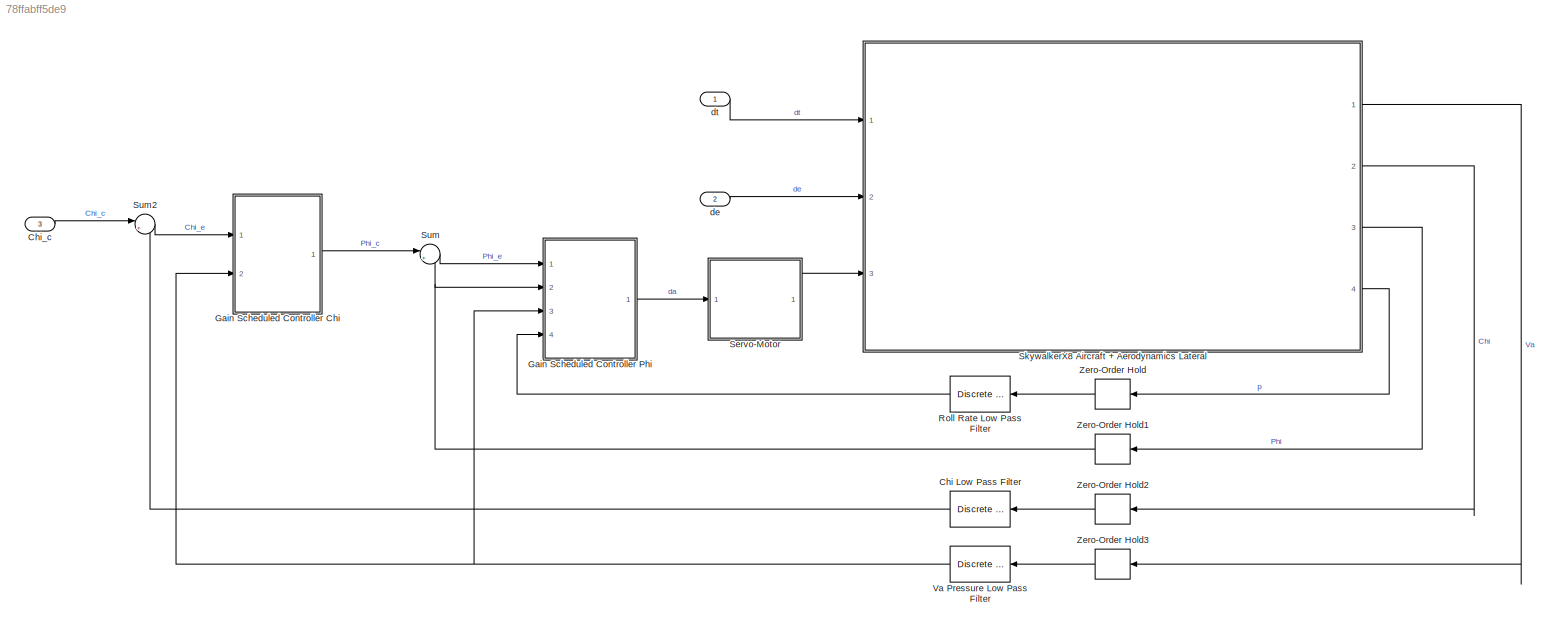
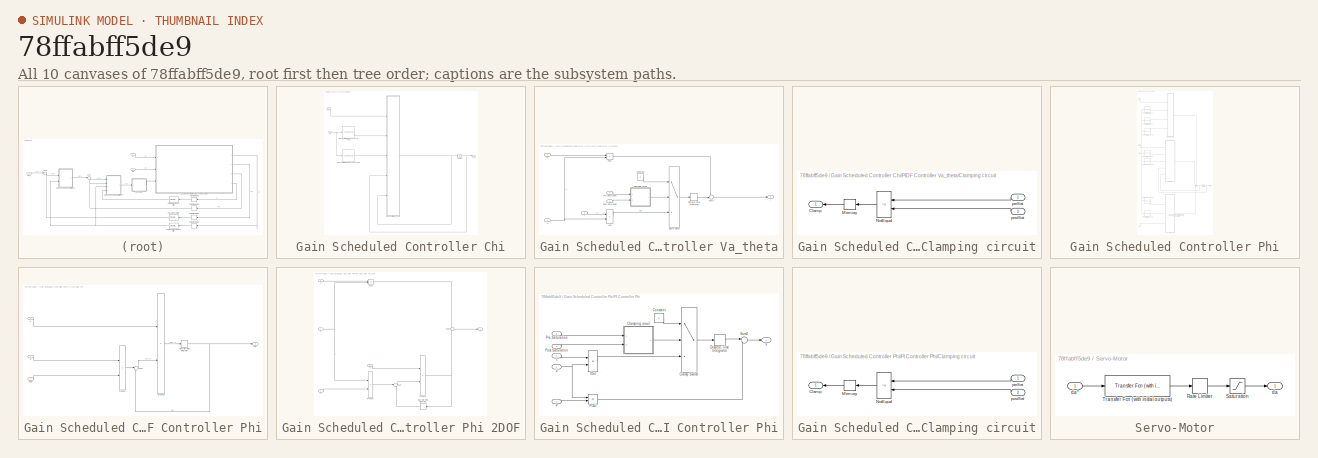
[diagram: thumbnail index - all 10 canvases of the model, root first then tree order]
MODEL slx_78ffabff5de9
KIND model
CONFIG AbsTol = auto
CONFIG EnableMultiTasking = off
CONFIG FixedStep = 0.001
CONFIG MaxStep = auto
CONFIG MinStep = auto
CONFIG RelTol = 1e-3
CONFIG SampleTimeConstraint = Unconstrained
CONFIG Solver = FixedStepAuto
CONFIG SolverName = FixedStepAuto
CONFIG StartTime = 0.0
CONFIG StopTime = inf
BLOCK [Reference] Chi Low Pass Filter  REF=simulink_extras/Additional
Discrete/Discrete
Transfer Fcn
(with initial outputs)
  Ports = [1, 1]
  SourceBlock = simulink_extras/Additional\nDiscrete/Discrete\nTransfer Fcn\n(with initial outputs)
  SourceProductBaseCode = SL
  SourceProductName = Simulink
  SourceType = Discrete Transfer Function with Initial Outputs
BLOCK [Inport] Chi_c
  IconDisplay = Port number
  Port = 3
BLOCK [SubSystem] Gain Scheduled Controller Chi
  Ports = [2, 1]
  RequestExecContextInheritance = off
BLOCK [Inport] Gain Scheduled Controller Chi/Chi_e
  IconDisplay = Port number
BLOCK [Lookup_n-D] Gain Scheduled Controller Chi/PIDF Controller Chi Ki 2D Lookup Table
  BreakpointsForDimension1 = SkywalkerX8.Control.Lateral.SchedulingVariables.VaArray
  BreakpointsForDimension2 = SkywalkerX8.Control.Longitudinal.SchedulingVariables.alphaArray
  InternalRulePriority = Speed
  NumberOfTableDimensions = 1
  Ports = [1, 1]
  RndMeth = Simplest
  Table = SkywalkerX8.Control.Lateral.ChiController.Digital.KiChi
BLOCK [Lookup_n-D] Gain Scheduled Controller Chi/PIDF Controller Chi Kp 2D Lookup Table
  BreakpointsForDimension1 = SkywalkerX8.Control.Lateral.SchedulingVariables.VaArray
  BreakpointsForDimension2 = SkywalkerX8.Control.Longitudinal.SchedulingVariables.alphaArray
  InternalRulePriority = Speed
  NumberOfTableDimensions = 1
  Ports = [1, 1]
  RndMeth = Simplest
  Table = SkywalkerX8.Control.Lateral.ChiController.Digital.KpChi
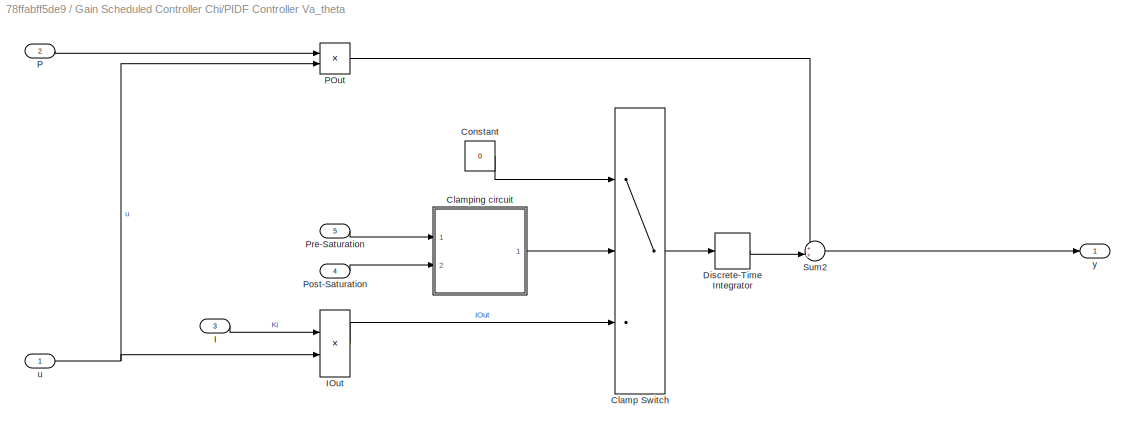
BLOCK [SubSystem] Gain Scheduled Controller Chi/PIDF Controller Va_theta
  Ports = [5, 1]
  RequestExecContextInheritance = off
BLOCK [Switch] Gain Scheduled Controller Chi/PIDF Controller Va_theta/Clamp Switch
  Criteria = u2 ~= 0
  InputSameDT = off
  SaturateOnIntegerOverflow = off
BLOCK [SubSystem] Gain Scheduled Controller Chi/PIDF Controller Va_theta/Clamping circuit
  Ports = [2, 1]
  RequestExecContextInheritance = off
BLOCK [Outport] Gain Scheduled Controller Chi/PIDF Controller Va_theta/Clamping circuit/Clamp
  DisableCoverage = on
  IconDisplay = Port number
BLOCK [Memory] Gain Scheduled Controller Chi/PIDF Controller Va_theta/Clamping circuit/Memory
  DisableCoverage = on
BLOCK [RelationalOperator] Gain Scheduled Controller Chi/PIDF Controller Va_theta/Clamping circuit/NotEqual
  DisableCoverage = on
  Operator = ~=
  Ports = [2, 1]
BLOCK [Inport] Gain Scheduled Controller Chi/PIDF Controller Va_theta/Clamping circuit/postSat
  DisableCoverage = on
  IconDisplay = Port number
  Port = 2
BLOCK [Inport] Gain Scheduled Controller Chi/PIDF Controller Va_theta/Clamping circuit/preSat
  DisableCoverage = on
  IconDisplay = Port number
BLOCK [Constant] Gain Scheduled Controller Chi/PIDF Controller Va_theta/Constant
  Value = 0
BLOCK [DiscreteIntegrator] Gain Scheduled Controller Chi/PIDF Controller Va_theta/Discrete-Time Integrator
  ICPrevOutput = DiscIntNeverNeededParam
  ICPrevScaledInput = DiscIntNeverNeededParam
  InitialCondition = SkywalkerX8.InitialConditions.PhiThetaPsi(1)
  InitialConditionSetting = Auto
  IntegratorMethod = Integration: Trapezoidal
  Ports = [1, 1]
  SampleTime = SkywalkerX8.Control.Lateral.ChiController.Digital.SampleTime
BLOCK [Inport] Gain Scheduled Controller Chi/PIDF Controller Va_theta/I
  IconDisplay = Port number
  Port = 3
BLOCK [Product] Gain Scheduled Controller Chi/PIDF Controller Va_theta/IOut
  DisableCoverage = on
  InputSameDT = off
  OutDataTypeStr = Inherit: Inherit via internal rule
  Ports = [2, 1]
  RndMeth = Floor
  SaturateOnIntegerOverflow = off
BLOCK [Inport] Gain Scheduled Controller Chi/PIDF Controller Va_theta/P
  IconDisplay = Port number
  Port = 2
BLOCK [Product] Gain Scheduled Controller Chi/PIDF Controller Va_theta/POut
  InputSameDT = off
  OutDataTypeStr = Inherit: Inherit via internal rule
  Ports = [2, 1]
  RndMeth = Floor
  SaturateOnIntegerOverflow = off
BLOCK [Inport] Gain Scheduled Controller Chi/PIDF Controller Va_theta/Post-Saturation
  IconDisplay = Port number
  Port = 4
BLOCK [Inport] Gain Scheduled Controller Chi/PIDF Controller Va_theta/Pre-Saturation
  IconDisplay = Port number
  Port = 5
BLOCK [Sum] Gain Scheduled Controller Chi/PIDF Controller Va_theta/Sum2
  IconShape = round
  InputSameDT = off
  Inputs = ++|
  OutDataTypeStr = Inherit: Inherit via internal rule
  Ports = [2, 1]
  SaturateOnIntegerOverflow = off
BLOCK [Inport] Gain Scheduled Controller Chi/PIDF Controller Va_theta/u
  IconDisplay = Port number
BLOCK [Outport] Gain Scheduled Controller Chi/PIDF Controller Va_theta/y
  IconDisplay = Port number
  InitialOutput = 0
BLOCK [Outport] Gain Scheduled Controller Chi/Phi_c
  IconDisplay = Port number
BLOCK [Saturate] Gain Scheduled Controller Chi/Saturation
  InputPortMap = u0
  LowerLimit = SkywalkerX8.Control.Lateral.ChiController.lowerSaturationPhiC
  Ports = [1, 1]
  UpperLimit = SkywalkerX8.Control.Lateral.ChiController.upperSaturationPhiC
BLOCK [Inport] Gain Scheduled Controller Chi/Va
  IconDisplay = Port number
  Port = 2
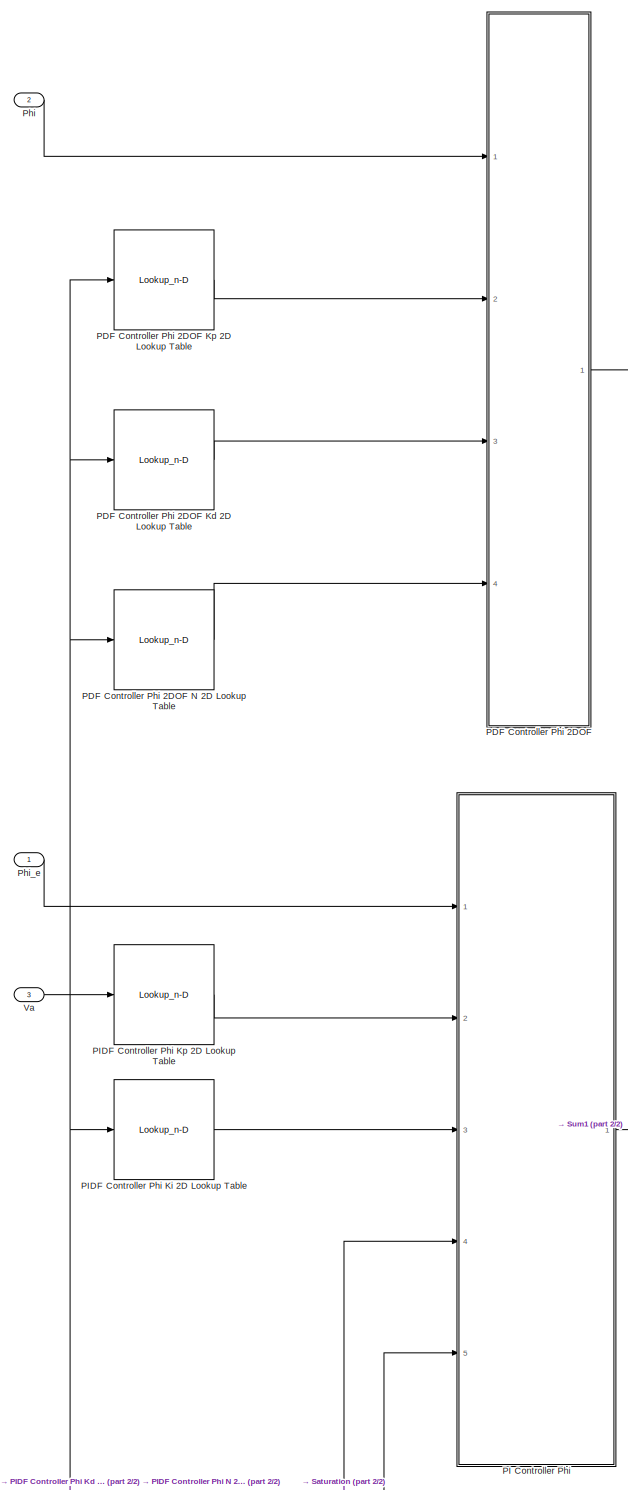
[diagram: Gain Scheduled Controller Phi - part 1/2, top left region]
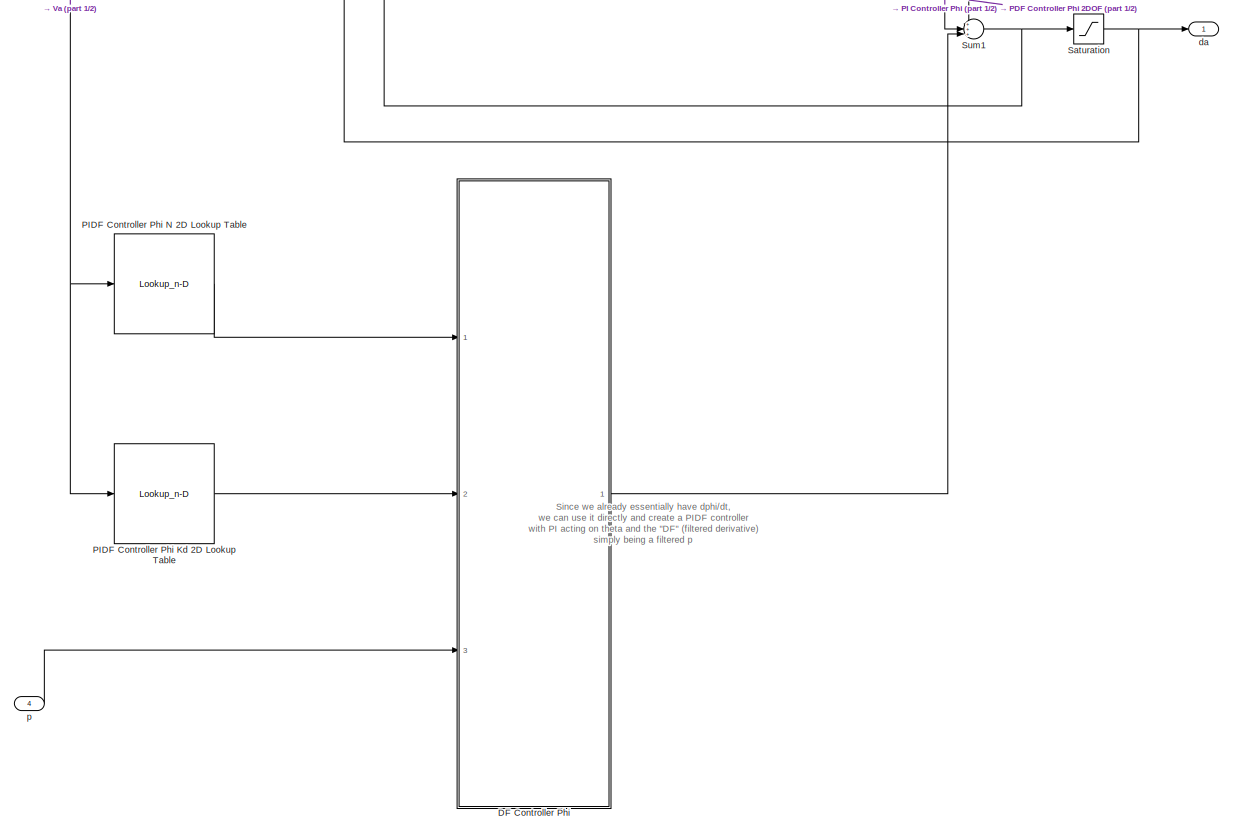
[diagram: Gain Scheduled Controller Phi - part 2/2, full width, bottom band]
BLOCK [SubSystem] Gain Scheduled Controller Phi
  Ports = [4, 1]
  RequestExecContextInheritance = off
BLOCK [SubSystem] Gain Scheduled Controller Phi/DF Controller Phi
  Ports = [3, 1]
  RequestExecContextInheritance = off
BLOCK [Inport] Gain Scheduled Controller Phi/DF Controller Phi/D
  IconDisplay = Port number
  Port = 2
BLOCK [DiscreteIntegrator] Gain Scheduled Controller Phi/DF Controller Phi/Discrete-Time Integrator
  ICPrevOutput = DiscIntNeverNeededParam
  ICPrevScaledInput = DiscIntNeverNeededParam
  InitialConditionSetting = Auto
  IntegratorMethod = Integration: Trapezoidal
  Ports = [1, 1]
  SampleTime = SkywalkerX8.Control.Lateral.PhiController.Digital.SampleTime
BLOCK [Inport] Gain Scheduled Controller Phi/DF Controller Phi/N
  IconDisplay = Port number
BLOCK [Product] Gain Scheduled Controller Phi/DF Controller Phi/Product
  InputSameDT = off
  OutDataTypeStr = Inherit: Inherit via internal rule
  Ports = [2, 1]
  RndMeth = Floor
  SaturateOnIntegerOverflow = off
BLOCK [Product] Gain Scheduled Controller Phi/DF Controller Phi/Product1
  InputSameDT = off
  OutDataTypeStr = Inherit: Inherit via internal rule
  Ports = [2, 1]
  RndMeth = Floor
  SaturateOnIntegerOverflow = off
BLOCK [Sum] Gain Scheduled Controller Phi/DF Controller Phi/Sum
  IconShape = round
  InputSameDT = off
  Inputs = |+-
  OutDataTypeStr = Inherit: Inherit via internal rule
  Ports = [2, 1]
  SaturateOnIntegerOverflow = off
BLOCK [Outport] Gain Scheduled Controller Phi/DF Controller Phi/da*
  IconDisplay = Port number
BLOCK [Inport] Gain Scheduled Controller Phi/DF Controller Phi/du//dt
  IconDisplay = Port number
  Port = 3
BLOCK [SubSystem] Gain Scheduled Controller Phi/PDF Controller Phi 2DOF
  Ports = [4, 1]
  RequestExecContextInheritance = off
BLOCK [Lookup_n-D] Gain Scheduled Controller Phi/PDF Controller Phi 2DOF Kd 2D Lookup Table
  BreakpointsForDimension1 = SkywalkerX8.Control.Lateral.SchedulingVariables.VaArray
  BreakpointsForDimension2 = SkywalkerX8.Control.Longitudinal.SchedulingVariables.alphaArray
  InternalRulePriority = Speed
  NumberOfTableDimensions = 1
  Ports = [1, 1]
  RndMeth = Simplest
  Table = SkywalkerX8.Control.Lateral.PhiController.Digital.KdPhi2DOF
BLOCK [Lookup_n-D] Gain Scheduled Controller Phi/PDF Controller Phi 2DOF Kp 2D Lookup Table
  BreakpointsForDimension1 = SkywalkerX8.Control.Lateral.SchedulingVariables.VaArray
  BreakpointsForDimension2 = SkywalkerX8.Control.Longitudinal.SchedulingVariables.alphaArray
  InternalRulePriority = Speed
  NumberOfTableDimensions = 1
  Ports = [1, 1]
  RndMeth = Simplest
  Table = SkywalkerX8.Control.Lateral.PhiController.Digital.KpPhi2DOF
BLOCK [Lookup_n-D] Gain Scheduled Controller Phi/PDF Controller Phi 2DOF N 2D Lookup Table
  BreakpointsForDimension1 = SkywalkerX8.Control.Lateral.SchedulingVariables.VaArray
  BreakpointsForDimension2 = SkywalkerX8.Control.Longitudinal.SchedulingVariables.alphaArray
  InternalRulePriority = Speed
  NumberOfTableDimensions = 1
  Ports = [1, 1]
  RndMeth = Simplest
  Table = SkywalkerX8.Control.Lateral.PhiController.Digital.NPhi2DOF
BLOCK [Inport] Gain Scheduled Controller Phi/PDF Controller Phi 2DOF/D
  IconDisplay = Port number
  Port = 3
BLOCK [DiscreteIntegrator] Gain Scheduled Controller Phi/PDF Controller Phi 2DOF/Discrete-Time Integrator
  ICPrevOutput = DiscIntNeverNeededParam
  ICPrevScaledInput = DiscIntNeverNeededParam
  InitialConditionSetting = Auto
  Ports = [1, 1]
  SampleTime = SkywalkerX8.Control.Lateral.PhiController.Digital.SampleTime
BLOCK [Inport] Gain Scheduled Controller Phi/PDF Controller Phi 2DOF/N
  IconDisplay = Port number
  Port = 4
BLOCK [Inport] Gain Scheduled Controller Phi/PDF Controller Phi 2DOF/P
  IconDisplay = Port number
  Port = 2
BLOCK [Product] Gain Scheduled Controller Phi/PDF Controller Phi 2DOF/POut
  InputSameDT = off
  OutDataTypeStr = Inherit: Inherit via internal rule
  Ports = [2, 1]
  RndMeth = Floor
  SaturateOnIntegerOverflow = off
BLOCK [Product] Gain Scheduled Controller Phi/PDF Controller Phi 2DOF/Product
  InputSameDT = off
  OutDataTypeStr = Inherit: Inherit via internal rule
  Ports = [2, 1]
  RndMeth = Floor
  SaturateOnIntegerOverflow = off
BLOCK [Product] Gain Scheduled Controller Phi/PDF Controller Phi 2DOF/Product1
  InputSameDT = off
  OutDataTypeStr = Inherit: Inherit via internal rule
  Ports = [2, 1]
  RndMeth = Floor
  SaturateOnIntegerOverflow = off
BLOCK [Sum] Gain Scheduled Controller Phi/PDF Controller Phi 2DOF/Sum
  IconShape = round
  InputSameDT = off
  Inputs = |+-
  OutDataTypeStr = Inherit: Inherit via internal rule
  Ports = [2, 1]
  SaturateOnIntegerOverflow = off
BLOCK [Sum] Gain Scheduled Controller Phi/PDF Controller Phi 2DOF/Sum2
  IconShape = round
  InputSameDT = off
  OutDataTypeStr = Inherit: Inherit via internal rule
  Ports = [2, 1]
  SaturateOnIntegerOverflow = off
BLOCK [Inport] Gain Scheduled Controller Phi/PDF Controller Phi 2DOF/u
  IconDisplay = Port number
BLOCK [Outport] Gain Scheduled Controller Phi/PDF Controller Phi 2DOF/y
  IconDisplay = Port number
  InitialOutput = 0
BLOCK [SubSystem] Gain Scheduled Controller Phi/PI Controller Phi
  Ports = [5, 1]
  RequestExecContextInheritance = off
BLOCK [Switch] Gain Scheduled Controller Phi/PI Controller Phi/Clamp Switch
  Criteria = u2 ~= 0
  InputSameDT = off
  SaturateOnIntegerOverflow = off
BLOCK [SubSystem] Gain Scheduled Controller Phi/PI Controller Phi/Clamping circuit
  Ports = [2, 1]
  RequestExecContextInheritance = off
BLOCK [Outport] Gain Scheduled Controller Phi/PI Controller Phi/Clamping circuit/Clamp
  DisableCoverage = on
  IconDisplay = Port number
BLOCK [Memory] Gain Scheduled Controller Phi/PI Controller Phi/Clamping circuit/Memory
  DisableCoverage = on
BLOCK [RelationalOperator] Gain Scheduled Controller Phi/PI Controller Phi/Clamping circuit/NotEqual
  DisableCoverage = on
  Operator = ~=
  Ports = [2, 1]
BLOCK [Inport] Gain Scheduled Controller Phi/PI Controller Phi/Clamping circuit/postSat
  DisableCoverage = on
  IconDisplay = Port number
  Port = 2
BLOCK [Inport] Gain Scheduled Controller Phi/PI Controller Phi/Clamping circuit/preSat
  DisableCoverage = on
  IconDisplay = Port number
BLOCK [Constant] Gain Scheduled Controller Phi/PI Controller Phi/Constant
  Value = 0
BLOCK [DiscreteIntegrator] Gain Scheduled Controller Phi/PI Controller Phi/Discrete-Time Integrator
  ICPrevOutput = DiscIntNeverNeededParam
  ICPrevScaledInput = DiscIntNeverNeededParam
  InitialCondition = SkywalkerX8.InitialConditions.da
  InitialConditionSetting = Auto
  IntegratorMethod = Integration: Trapezoidal
  Ports = [1, 1]
  SampleTime = SkywalkerX8.Control.Lateral.PhiController.Digital.SampleTime
BLOCK [Inport] Gain Scheduled Controller Phi/PI Controller Phi/I
  IconDisplay = Port number
  Port = 3
BLOCK [Product] Gain Scheduled Controller Phi/PI Controller Phi/IOut
  DisableCoverage = on
  InputSameDT = off
  OutDataTypeStr = Inherit: Inherit via internal rule
  Ports = [2, 1]
  RndMeth = Floor
  SaturateOnIntegerOverflow = off
BLOCK [Inport] Gain Scheduled Controller Phi/PI Controller Phi/P
  IconDisplay = Port number
  Port = 2
BLOCK [Product] Gain Scheduled Controller Phi/PI Controller Phi/POut
  InputSameDT = off
  OutDataTypeStr = Inherit: Inherit via internal rule
  Ports = [2, 1]
  RndMeth = Floor
  SaturateOnIntegerOverflow = off
BLOCK [Inport] Gain Scheduled Controller Phi/PI Controller Phi/Post-Saturation
  IconDisplay = Port number
  Port = 4
BLOCK [Inport] Gain Scheduled Controller Phi/PI Controller Phi/Pre-Saturation
  IconDisplay = Port number
  Port = 5
BLOCK [Sum] Gain Scheduled Controller Phi/PI Controller Phi/Sum2
  IconShape = round
  InputSameDT = off
  Inputs = |++
  OutDataTypeStr = Inherit: Inherit via internal rule
  Ports = [2, 1]
  SaturateOnIntegerOverflow = off
BLOCK [Inport] Gain Scheduled Controller Phi/PI Controller Phi/u
  IconDisplay = Port number
BLOCK [Outport] Gain Scheduled Controller Phi/PI Controller Phi/y
  IconDisplay = Port number
  InitialOutput = 0
BLOCK [Lookup_n-D] Gain Scheduled Controller Phi/PIDF Controller Phi Kd 2D Lookup Table
  BreakpointsForDimension1 = SkywalkerX8.Control.Lateral.SchedulingVariables.VaArray
  BreakpointsForDimension2 = SkywalkerX8.Control.Longitudinal.SchedulingVariables.alphaArray
  InternalRulePriority = Speed
  NumberOfTableDimensions = 1
  Ports = [1, 1]
  RndMeth = Simplest
  Table = SkywalkerX8.Control.Lateral.PhiController.Digital.KdPhi
BLOCK [Lookup_n-D] Gain Scheduled Controller Phi/PIDF Controller Phi Ki 2D Lookup Table
  BreakpointsForDimension1 = SkywalkerX8.Control.Lateral.SchedulingVariables.VaArray
  BreakpointsForDimension2 = SkywalkerX8.Control.Longitudinal.SchedulingVariables.alphaArray
  InternalRulePriority = Speed
  NumberOfTableDimensions = 1
  Ports = [1, 1]
  RndMeth = Simplest
  Table = SkywalkerX8.Control.Lateral.PhiController.Digital.KiPhi
BLOCK [Lookup_n-D] Gain Scheduled Controller Phi/PIDF Controller Phi Kp 2D Lookup Table
  BreakpointsForDimension1 = SkywalkerX8.Control.Lateral.SchedulingVariables.VaArray
  BreakpointsForDimension2 = SkywalkerX8.Control.Longitudinal.SchedulingVariables.alphaArray
  InternalRulePriority = Speed
  NumberOfTableDimensions = 1
  Ports = [1, 1]
  RndMeth = Simplest
  Table = SkywalkerX8.Control.Lateral.PhiController.Digital.KpPhi
BLOCK [Lookup_n-D] Gain Scheduled Controller Phi/PIDF Controller Phi N 2D Lookup Table
  BreakpointsForDimension1 = SkywalkerX8.Control.Lateral.SchedulingVariables.VaArray
  BreakpointsForDimension2 = SkywalkerX8.Control.Longitudinal.SchedulingVariables.alphaArray
  InternalRulePriority = Speed
  NumberOfTableDimensions = 1
  Ports = [1, 1]
  RndMeth = Simplest
  Table = SkywalkerX8.Control.Lateral.PhiController.Digital.NPhi
BLOCK [Inport] Gain Scheduled Controller Phi/Phi
  IconDisplay = Port number
  Port = 2
BLOCK [Inport] Gain Scheduled Controller Phi/Phi_e
  IconDisplay = Port number
BLOCK [Saturate] Gain Scheduled Controller Phi/Saturation
  InputPortMap = u0
  LowerLimit = SkywalkerX8.Control.Lateral.PhiController.lowerSaturationDa
  Ports = [1, 1]
  UpperLimit = SkywalkerX8.Control.Lateral.PhiController.upperSaturationDa
BLOCK [Sum] Gain Scheduled Controller Phi/Sum1
  IconShape = round
  InputSameDT = off
  Inputs = +++|
  OutDataTypeStr = Inherit: Inherit via internal rule
  Ports = [3, 1]
  SaturateOnIntegerOverflow = off
BLOCK [Inport] Gain Scheduled Controller Phi/Va
  IconDisplay = Port number
  Port = 3
BLOCK [Outport] Gain Scheduled Controller Phi/da
  IconDisplay = Port number
BLOCK [Inport] Gain Scheduled Controller Phi/p
  IconDisplay = Port number
  Port = 4
BLOCK [Reference] Roll Rate Low Pass Filter  REF=simulink_extras/Additional
Discrete/Discrete
Transfer Fcn
(with initial outputs)
  Ports = [1, 1]
  SourceBlock = simulink_extras/Additional\nDiscrete/Discrete\nTransfer Fcn\n(with initial outputs)
  SourceProductBaseCode = SL
  SourceProductName = Simulink
  SourceType = Discrete Transfer Function with Initial Outputs
BLOCK [SubSystem] Servo-Motor
  Ports = [1, 1]
  RequestExecContextInheritance = off
BLOCK [RateLimiter] Servo-Motor/Rate Limiter
  FallingSlewLimit = -SkywalkerX8.Actuators.Servos.RateLimit
  InitialCondition = SkywalkerX8.InitialConditions.de
  RisingSlewLimit = SkywalkerX8.Actuators.Servos.RateLimit
  SampleTimeMode = inherited
BLOCK [Saturate] Servo-Motor/Saturation
  InputPortMap = u0
  LowerLimit = 2*SkywalkerX8.Actuators.Servos.LowerSaturation
  Ports = [1, 1]
  UpperLimit = 2*SkywalkerX8.Actuators.Servos.UpperSaturation
BLOCK [Reference] Servo-Motor/Transfer Fcn (with initial outputs)  REF=simulink_extras/Additional
Linear/Transfer Fcn
(with initial outputs)
  Ports = [1, 1]
  SourceBlock = simulink_extras/Additional\nLinear/Transfer Fcn\n(with initial outputs)
  SourceProductBaseCode = SL
  SourceProductName = Simulink
  SourceType = Transfer Function with Initial Outputs
BLOCK [Outport] Servo-Motor/da
  IconDisplay = Port number
BLOCK [Inport] Servo-Motor/da*
  IconDisplay = Port number
BLOCK [ModelReference] SkywalkerX8 Aircraft + Aerodynamics Lateral
  ModelNameDialog = SkywalkerX8_Lateral.slx
  ModelReferenceVersion = 1.51
  Ports = [3, 4]
BLOCK [Sum] Sum
  IconShape = round
  InputSameDT = off
  Inputs = |+-
  OutDataTypeStr = Inherit: Inherit via internal rule
  Ports = [2, 1]
  SaturateOnIntegerOverflow = off
BLOCK [Sum] Sum2
  IconShape = round
  InputSameDT = off
  Inputs = |+-
  OutDataTypeStr = Inherit: Inherit via internal rule
  Ports = [2, 1]
  SaturateOnIntegerOverflow = off
BLOCK [Reference] Va Pressure Low Pass Filter  REF=simulink_extras/Additional
Discrete/Discrete
Transfer Fcn
(with initial outputs)
  Ports = [1, 1]
  SourceBlock = simulink_extras/Additional\nDiscrete/Discrete\nTransfer Fcn\n(with initial outputs)
  SourceProductBaseCode = SL
  SourceProductName = Simulink
  SourceType = Discrete Transfer Function with Initial Outputs
BLOCK [ZeroOrderHold] Zero-Order Hold
  SampleTime = SkywalkerX8.Sensors.IMU.Gyroscope.SampleTime
BLOCK [ZeroOrderHold] Zero-Order Hold1
  SampleTime = SkywalkerX8.Sensors.EKF.Attitude.StateTransitionSampleTime
BLOCK [ZeroOrderHold] Zero-Order Hold2
  SampleTime = SkywalkerX8.Sensors.EKF.GPSSmoothing.StateTransitionSampleTime
BLOCK [ZeroOrderHold] Zero-Order Hold3
  SampleTime = SkywalkerX8.Sensors.AirspeedPressure.SampleTime
BLOCK [Inport] de
  IconDisplay = Port number
  Port = 2
BLOCK [Inport] dt
  IconDisplay = Port number
ANNOTATION Gain Scheduled Controller Phi: Since we already essentially have dphi/dt, we can use it directly and create a PIDF controller with PI acting on theta and the "DF" (filtered derivative) simply being a filtered p
LINE Chi Low Pass Filter:1 -> Sum2:2
LINE Chi_c:1 -> Sum2:1
LINE Gain Scheduled Controller Chi/Chi_e:1 -> Gain Scheduled Controller Chi/PIDF Controller Va_theta:1
LINE Gain Scheduled Controller Chi/PIDF Controller Chi Ki 2D Lookup Table:1 -> Gain Scheduled Controller Chi/PIDF Controller Va_theta:3
LINE Gain Scheduled Controller Chi/PIDF Controller Chi Kp 2D Lookup Table:1 -> Gain Scheduled Controller Chi/PIDF Controller Va_theta:2
LINE Gain Scheduled Controller Chi/PIDF Controller Va_theta/Clamp Switch:1 -> Gain Scheduled Controller Chi/PIDF Controller Va_theta/Discrete-Time Integrator:1
LINE Gain Scheduled Controller Chi/PIDF Controller Va_theta/Clamping circuit/Memory:1 -> Gain Scheduled Controller Chi/PIDF Controller Va_theta/Clamping circuit/Clamp:1
LINE Gain Scheduled Controller Chi/PIDF Controller Va_theta/Clamping circuit/NotEqual:1 -> Gain Scheduled Controller Chi/PIDF Controller Va_theta/Clamping circuit/Memory:1
LINE Gain Scheduled Controller Chi/PIDF Controller Va_theta/Clamping circuit/postSat:1 -> Gain Scheduled Controller Chi/PIDF Controller Va_theta/Clamping circuit/NotEqual:2
LINE Gain Scheduled Controller Chi/PIDF Controller Va_theta/Clamping circuit/preSat:1 -> Gain Scheduled Controller Chi/PIDF Controller Va_theta/Clamping circuit/NotEqual:1
LINE Gain Scheduled Controller Chi/PIDF Controller Va_theta/Clamping circuit:1 -> Gain Scheduled Controller Chi/PIDF Controller Va_theta/Clamp Switch:2
LINE Gain Scheduled Controller Chi/PIDF Controller Va_theta/Constant:1 -> Gain Scheduled Controller Chi/PIDF Controller Va_theta/Clamp Switch:1
LINE Gain Scheduled Controller Chi/PIDF Controller Va_theta/Discrete-Time Integrator:1 -> Gain Scheduled Controller Chi/PIDF Controller Va_theta/Sum2:2
LINE Gain Scheduled Controller Chi/PIDF Controller Va_theta/I:1 -> Gain Scheduled Controller Chi/PIDF Controller Va_theta/IOut:1
LINE Gain Scheduled Controller Chi/PIDF Controller Va_theta/IOut:1 -> Gain Scheduled Controller Chi/PIDF Controller Va_theta/Clamp Switch:3
LINE Gain Scheduled Controller Chi/PIDF Controller Va_theta/P:1 -> Gain Scheduled Controller Chi/PIDF Controller Va_theta/POut:1
LINE Gain Scheduled Controller Chi/PIDF Controller Va_theta/POut:1 -> Gain Scheduled Controller Chi/PIDF Controller Va_theta/Sum2:1
LINE Gain Scheduled Controller Chi/PIDF Controller Va_theta/Post-Saturation:1 -> Gain Scheduled Controller Chi/PIDF Controller Va_theta/Clamping circuit:2
LINE Gain Scheduled Controller Chi/PIDF Controller Va_theta/Pre-Saturation:1 -> Gain Scheduled Controller Chi/PIDF Controller Va_theta/Clamping circuit:1
LINE Gain Scheduled Controller Chi/PIDF Controller Va_theta/Sum2:1 -> Gain Scheduled Controller Chi/PIDF Controller Va_theta/y:1
NET Gain Scheduled Controller Chi/PIDF Controller Va_theta/u:1 -> Gain Scheduled Controller Chi/PIDF Controller Va_theta/IOut:2, Gain Scheduled Controller Chi/PIDF Controller Va_theta/POut:2
NET Gain Scheduled Controller Chi/PIDF Controller Va_theta:1 -> Gain Scheduled Controller Chi/PIDF Controller Va_theta:5, Gain Scheduled Controller Chi/Saturation:1
NET Gain Scheduled Controller Chi/Saturation:1 -> Gain Scheduled Controller Chi/PIDF Controller Va_theta:4, Gain Scheduled Controller Chi/Phi_c:1
NET Gain Scheduled Controller Chi/Va:1 -> Gain Scheduled Controller Chi/PIDF Controller Chi Ki 2D Lookup Table:1, Gain Scheduled Controller Chi/PIDF Controller Chi Kp 2D Lookup Table:1
LINE Gain Scheduled Controller Chi:1 -> Sum:1
LINE Gain Scheduled Controller Phi/DF Controller Phi/D:1 -> Gain Scheduled Controller Phi/DF Controller Phi/Product:1
NET Gain Scheduled Controller Phi/DF Controller Phi/Discrete-Time Integrator:1 -> Gain Scheduled Controller Phi/DF Controller Phi/Sum:2, Gain Scheduled Controller Phi/DF Controller Phi/da*:1
LINE Gain Scheduled Controller Phi/DF Controller Phi/N:1 -> Gain Scheduled Controller Phi/DF Controller Phi/Product1:1
LINE Gain Scheduled Controller Phi/DF Controller Phi/Product1:1 -> Gain Scheduled Controller Phi/DF Controller Phi/Discrete-Time Integrator:1
LINE Gain Scheduled Controller Phi/DF Controller Phi/Product:1 -> Gain Scheduled Controller Phi/DF Controller Phi/Sum:1
LINE Gain Scheduled Controller Phi/DF Controller Phi/Sum:1 -> Gain Scheduled Controller Phi/DF Controller Phi/Product1:2
LINE Gain Scheduled Controller Phi/DF Controller Phi/du//dt:1 -> Gain Scheduled Controller Phi/DF Controller Phi/Product:2
LINE Gain Scheduled Controller Phi/DF Controller Phi:1 -> Gain Scheduled Controller Phi/Sum1:3
LINE Gain Scheduled Controller Phi/PDF Controller Phi 2DOF Kd 2D Lookup Table:1 -> Gain Scheduled Controller Phi/PDF Controller Phi 2DOF:3
LINE Gain Scheduled Controller Phi/PDF Controller Phi 2DOF Kp 2D Lookup Table:1 -> Gain Scheduled Controller Phi/PDF Controller Phi 2DOF:2
LINE Gain Scheduled Controller Phi/PDF Controller Phi 2DOF N 2D Lookup Table:1 -> Gain Scheduled Controller Phi/PDF Controller Phi 2DOF:4
LINE Gain Scheduled Controller Phi/PDF Controller Phi 2DOF/D:1 -> Gain Scheduled Controller Phi/PDF Controller Phi 2DOF/Product:2
LINE Gain Scheduled Controller Phi/PDF Controller Phi 2DOF/Discrete-Time Integrator:1 -> Gain Scheduled Controller Phi/PDF Controller Phi 2DOF/Sum:2
LINE Gain Scheduled Controller Phi/PDF Controller Phi 2DOF/N:1 -> Gain Scheduled Controller Phi/PDF Controller Phi 2DOF/Product1:1
LINE Gain Scheduled Controller Phi/PDF Controller Phi 2DOF/P:1 -> Gain Scheduled Controller Phi/PDF Controller Phi 2DOF/POut:1
LINE Gain Scheduled Controller Phi/PDF Controller Phi 2DOF/POut:1 -> Gain Scheduled Controller Phi/PDF Controller Phi 2DOF/Sum2:1
NET Gain Scheduled Controller Phi/PDF Controller Phi 2DOF/Product1:1 -> Gain Scheduled Controller Phi/PDF Controller Phi 2DOF/Discrete-Time Integrator:1, Gain Scheduled Controller Phi/PDF Controller Phi 2DOF/Sum2:2
LINE Gain Scheduled Controller Phi/PDF Controller Phi 2DOF/Product:1 -> Gain Scheduled Controller Phi/PDF Controller Phi 2DOF/Sum:1
LINE Gain Scheduled Controller Phi/PDF Controller Phi 2DOF/Sum2:1 -> Gain Scheduled Controller Phi/PDF Controller Phi 2DOF/y:1
LINE Gain Scheduled Controller Phi/PDF Controller Phi 2DOF/Sum:1 -> Gain Scheduled Controller Phi/PDF Controller Phi 2DOF/Product1:2
NET Gain Scheduled Controller Phi/PDF Controller Phi 2DOF/u:1 -> Gain Scheduled Controller Phi/PDF Controller Phi 2DOF/POut:2, Gain Scheduled Controller Phi/PDF Controller Phi 2DOF/Product:1
LINE Gain Scheduled Controller Phi/PDF Controller Phi 2DOF:1 -> Gain Scheduled Controller Phi/Sum1:1
LINE Gain Scheduled Controller Phi/PI Controller Phi/Clamp Switch:1 -> Gain Scheduled Controller Phi/PI Controller Phi/Discrete-Time Integrator:1
LINE Gain Scheduled Controller Phi/PI Controller Phi/Clamping circuit/Memory:1 -> Gain Scheduled Controller Phi/PI Controller Phi/Clamping circuit/Clamp:1
LINE Gain Scheduled Controller Phi/PI Controller Phi/Clamping circuit/NotEqual:1 -> Gain Scheduled Controller Phi/PI Controller Phi/Clamping circuit/Memory:1
LINE Gain Scheduled Controller Phi/PI Controller Phi/Clamping circuit/postSat:1 -> Gain Scheduled Controller Phi/PI Controller Phi/Clamping circuit/NotEqual:2
LINE Gain Scheduled Controller Phi/PI Controller Phi/Clamping circuit/preSat:1 -> Gain Scheduled Controller Phi/PI Controller Phi/Clamping circuit/NotEqual:1
LINE Gain Scheduled Controller Phi/PI Controller Phi/Clamping circuit:1 -> Gain Scheduled Controller Phi/PI Controller Phi/Clamp Switch:2
LINE Gain Scheduled Controller Phi/PI Controller Phi/Constant:1 -> Gain Scheduled Controller Phi/PI Controller Phi/Clamp Switch:1
LINE Gain Scheduled Controller Phi/PI Controller Phi/Discrete-Time Integrator:1 -> Gain Scheduled Controller Phi/PI Controller Phi/Sum2:1
LINE Gain Scheduled Controller Phi/PI Controller Phi/I:1 -> Gain Scheduled Controller Phi/PI Controller Phi/IOut:1
LINE Gain Scheduled Controller Phi/PI Controller Phi/IOut:1 -> Gain Scheduled Controller Phi/PI Controller Phi/Clamp Switch:3
LINE Gain Scheduled Controller Phi/PI Controller Phi/P:1 -> Gain Scheduled Controller Phi/PI Controller Phi/POut:2
LINE Gain Scheduled Controller Phi/PI Controller Phi/POut:1 -> Gain Scheduled Controller Phi/PI Controller Phi/Sum2:2
LINE Gain Scheduled Controller Phi/PI Controller Phi/Post-Saturation:1 -> Gain Scheduled Controller Phi/PI Controller Phi/Clamping circuit:2
LINE Gain Scheduled Controller Phi/PI Controller Phi/Pre-Saturation:1 -> Gain Scheduled Controller Phi/PI Controller Phi/Clamping circuit:1
LINE Gain Scheduled Controller Phi/PI Controller Phi/Sum2:1 -> Gain Scheduled Controller Phi/PI Controller Phi/y:1
NET Gain Scheduled Controller Phi/PI Controller Phi/u:1 -> Gain Scheduled Controller Phi/PI Controller Phi/IOut:2, Gain Scheduled Controller Phi/PI Controller Phi/POut:1
LINE Gain Scheduled Controller Phi/PI Controller Phi:1 -> Gain Scheduled Controller Phi/Sum1:2
LINE Gain Scheduled Controller Phi/PIDF Controller Phi Kd 2D Lookup Table:1 -> Gain Scheduled Controller Phi/DF Controller Phi:2
LINE Gain Scheduled Controller Phi/PIDF Controller Phi Ki 2D Lookup Table:1 -> Gain Scheduled Controller Phi/PI Controller Phi:3
LINE Gain Scheduled Controller Phi/PIDF Controller Phi Kp 2D Lookup Table:1 -> Gain Scheduled Controller Phi/PI Controller Phi:2
LINE Gain Scheduled Controller Phi/PIDF Controller Phi N 2D Lookup Table:1 -> Gain Scheduled Controller Phi/DF Controller Phi:1
LINE Gain Scheduled Controller Phi/Phi:1 -> Gain Scheduled Controller Phi/PDF Controller Phi 2DOF:1
LINE Gain Scheduled Controller Phi/Phi_e:1 -> Gain Scheduled Controller Phi/PI Controller Phi:1
NET Gain Scheduled Controller Phi/Saturation:1 -> Gain Scheduled Controller Phi/PI Controller Phi:4, Gain Scheduled Controller Phi/da:1
NET Gain Scheduled Controller Phi/Sum1:1 -> Gain Scheduled Controller Phi/PI Controller Phi:5, Gain Scheduled Controller Phi/Saturation:1
NET Gain Scheduled Controller Phi/Va:1 -> Gain Scheduled Controller Phi/PDF Controller Phi 2DOF Kd 2D Lookup Table:1, Gain Scheduled Controller Phi/PDF Controller Phi 2DOF Kp 2D Lookup Table:1, Gain Scheduled Controller Phi/PDF Controller Phi 2DOF N 2D Lookup Table:1, Gain Scheduled Controller Phi/PIDF Controller Phi Kd 2D Lookup Table:1, Gain Scheduled Controller Phi/PIDF Controller Phi Ki 2D Lookup Table:1, Gain Scheduled Controller Phi/PIDF Controller Phi Kp 2D Lookup Table:1, Gain Scheduled Controller Phi/PIDF Controller Phi N 2D Lookup Table:1
LINE Gain Scheduled Controller Phi/p:1 -> Gain Scheduled Controller Phi/DF Controller Phi:3
LINE Gain Scheduled Controller Phi:1 -> Servo-Motor:1
LINE Roll Rate Low Pass Filter:1 -> Gain Scheduled Controller Phi:4
LINE Servo-Motor/Rate Limiter:1 -> Servo-Motor/Saturation:1
LINE Servo-Motor/Saturation:1 -> Servo-Motor/da:1
LINE Servo-Motor/Transfer Fcn (with initial outputs):1 -> Servo-Motor/Rate Limiter:1
LINE Servo-Motor/da*:1 -> Servo-Motor/Transfer Fcn (with initial outputs):1
LINE Servo-Motor:1 -> SkywalkerX8 Aircraft + Aerodynamics Lateral:3
LINE SkywalkerX8 Aircraft + Aerodynamics Lateral:1 -> Zero-Order Hold3:1
LINE SkywalkerX8 Aircraft + Aerodynamics Lateral:2 -> Zero-Order Hold2:1
LINE SkywalkerX8 Aircraft + Aerodynamics Lateral:3 -> Zero-Order Hold1:1
LINE SkywalkerX8 Aircraft + Aerodynamics Lateral:4 -> Zero-Order Hold:1
LINE Sum2:1 -> Gain Scheduled Controller Chi:1
LINE Sum:1 -> Gain Scheduled Controller Phi:1
NET Va Pressure Low Pass Filter:1 -> Gain Scheduled Controller Chi:2, Gain Scheduled Controller Phi:3
NET Zero-Order Hold1:1 -> Gain Scheduled Controller Phi:2, Sum:2
LINE Zero-Order Hold2:1 -> Chi Low Pass Filter:1
LINE Zero-Order Hold3:1 -> Va Pressure Low Pass Filter:1
LINE Zero-Order Hold:1 -> Roll Rate Low Pass Filter:1
LINE de:1 -> SkywalkerX8 Aircraft + Aerodynamics Lateral:2
LINE dt:1 -> SkywalkerX8 Aircraft + Aerodynamics Lateral:1
note: NET lines group one-source signal fan-out (src -> all destinations, sorted); 1:1 wires keep LINE
